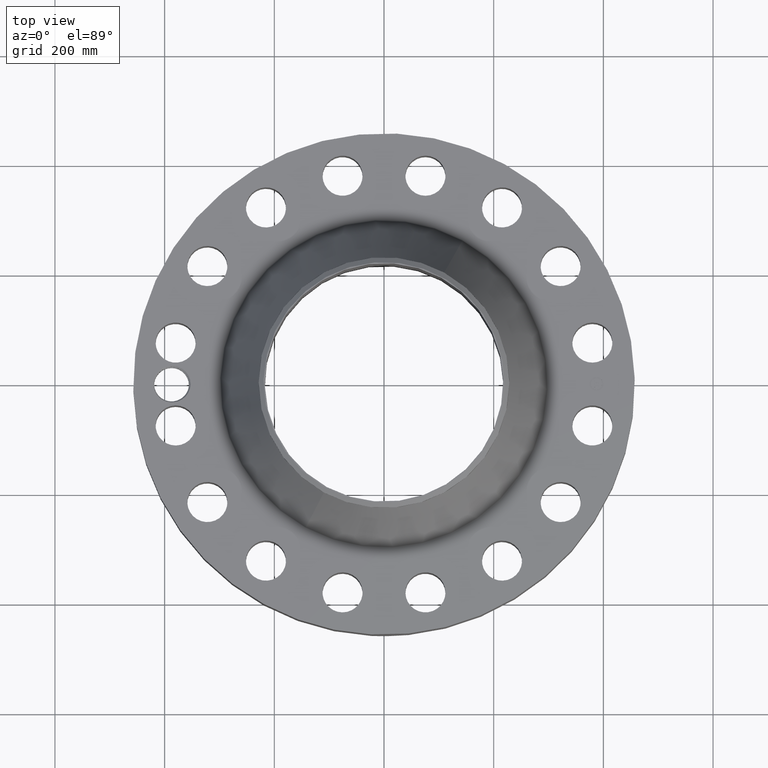
[diagram: clean part render]
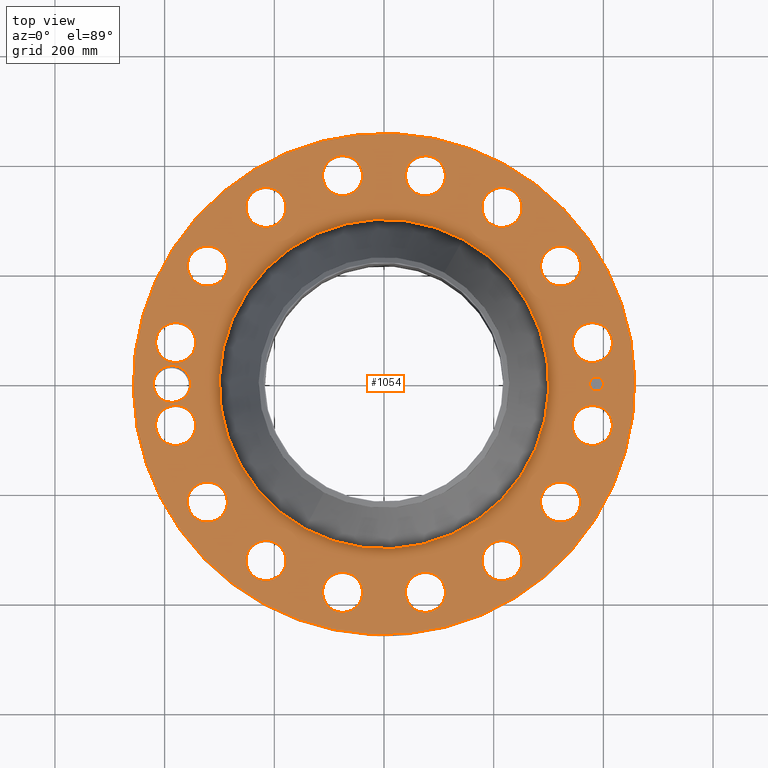
[diagram: same view with one face highlighted and labeled with its STEP entity id]
A machine part, top view. The second image highlights one B-rep face of the part: STEP entity #1054.
In plain terms, the highlighted planar face has unit normal (0, 0, -1).
Its self-contained STEP definition (entity closure, byte-faithful):
#58=AXIS2_PLACEMENT_3D('Circle Axis2P3D',#56,#57,$) ;
#560=AXIS2_PLACEMENT_3D('Circle Axis2P3D',#558,#559,$) ;
#660=AXIS2_PLACEMENT_3D('Plane Axis2P3D',#657,#658,#659) ;
#714=AXIS2_PLACEMENT_3D('Circle Axis2P3D',#712,#713,$) ;
#721=AXIS2_PLACEMENT_3D('Circle Axis2P3D',#719,#720,$) ;
#732=AXIS2_PLACEMENT_3D('Circle Axis2P3D',#730,#731,$) ;
#741=AXIS2_PLACEMENT_3D('Circle Axis2P3D',#739,#740,$) ;
#750=AXIS2_PLACEMENT_3D('Circle Axis2P3D',#748,#749,$) ;
#759=AXIS2_PLACEMENT_3D('Circle Axis2P3D',#757,#758,$) ;
#768=AXIS2_PLACEMENT_3D('Circle Axis2P3D',#766,#767,$) ;
#777=AXIS2_PLACEMENT_3D('Circle Axis2P3D',#775,#776,$) ;
#786=AXIS2_PLACEMENT_3D('Circle Axis2P3D',#784,#785,$) ;
#795=AXIS2_PLACEMENT_3D('Circle Axis2P3D',#793,#794,$) ;
#804=AXIS2_PLACEMENT_3D('Circle Axis2P3D',#802,#803,$) ;
#813=AXIS2_PLACEMENT_3D('Circle Axis2P3D',#811,#812,$) ;
#822=AXIS2_PLACEMENT_3D('Circle Axis2P3D',#820,#821,$) ;
#831=AXIS2_PLACEMENT_3D('Circle Axis2P3D',#829,#830,$) ;
#840=AXIS2_PLACEMENT_3D('Circle Axis2P3D',#838,#839,$) ;
#849=AXIS2_PLACEMENT_3D('Circle Axis2P3D',#847,#848,$) ;
#858=AXIS2_PLACEMENT_3D('Circle Axis2P3D',#856,#857,$) ;
#867=AXIS2_PLACEMENT_3D('Circle Axis2P3D',#865,#866,$) ;
#876=AXIS2_PLACEMENT_3D('Circle Axis2P3D',#874,#875,$) ;
#885=AXIS2_PLACEMENT_3D('Circle Axis2P3D',#883,#884,$) ;
#894=AXIS2_PLACEMENT_3D('Circle Axis2P3D',#892,#893,$) ;
#903=AXIS2_PLACEMENT_3D('Circle Axis2P3D',#901,#902,$) ;
#912=AXIS2_PLACEMENT_3D('Circle Axis2P3D',#910,#911,$) ;
#921=AXIS2_PLACEMENT_3D('Circle Axis2P3D',#919,#920,$) ;
#930=AXIS2_PLACEMENT_3D('Circle Axis2P3D',#928,#929,$) ;
#939=AXIS2_PLACEMENT_3D('Circle Axis2P3D',#937,#938,$) ;
#948=AXIS2_PLACEMENT_3D('Circle Axis2P3D',#946,#947,$) ;
#957=AXIS2_PLACEMENT_3D('Circle Axis2P3D',#955,#956,$) ;
#966=AXIS2_PLACEMENT_3D('Circle Axis2P3D',#964,#965,$) ;
#975=AXIS2_PLACEMENT_3D('Circle Axis2P3D',#973,#974,$) ;
#984=AXIS2_PLACEMENT_3D('Circle Axis2P3D',#982,#983,$) ;
#993=AXIS2_PLACEMENT_3D('Circle Axis2P3D',#991,#992,$) ;
#1002=AXIS2_PLACEMENT_3D('Circle Axis2P3D',#1000,#1001,$) ;
#1011=AXIS2_PLACEMENT_3D('Circle Axis2P3D',#1009,#1010,$) ;
#1020=AXIS2_PLACEMENT_3D('Circle Axis2P3D',#1018,#1019,$) ;
#1029=AXIS2_PLACEMENT_3D('Circle Axis2P3D',#1027,#1028,$) ;
#1038=AXIS2_PLACEMENT_3D('Circle Axis2P3D',#1036,#1037,$) ;
#1047=AXIS2_PLACEMENT_3D('Circle Axis2P3D',#1045,#1046,$) ;
#53=CARTESIAN_POINT('Vertex',(-8.62965969491,-15.7964861141,6.63000000003)) ;
#56=CARTESIAN_POINT('Axis2P3D Location',(0.,0.,6.63000000003)) ;
#60=CARTESIAN_POINT('Vertex',(8.62965969491,15.7964861141,6.63000000003)) ;
#558=CARTESIAN_POINT('Axis2P3D Location',(0.,0.,6.63000000003)) ;
#657=CARTESIAN_POINT('Axis2P3D Location',(0.,18.0000000001,6.63000000003)) ;
#667=CARTESIAN_POINT('Control Point',(-13.8750000001,2.23792987641E-015,6.63000000003)) ;
#668=CARTESIAN_POINT('Control Point',(-13.8781043885,0.106387661192,6.63000000003)) ;
#669=CARTESIAN_POINT('Control Point',(-13.8915027174,0.212331925073,6.63000000003)) ;
#670=CARTESIAN_POINT('Control Point',(-13.9151378905,0.316486341443,6.63000000003)) ;
#671=CARTESIAN_POINT('Control Point',(-13.9822405,0.518595752442,6.63000000003)) ;
#672=CARTESIAN_POINT('Control Point',(-14.0867484191,0.703411018152,6.63000000003)) ;
#673=CARTESIAN_POINT('Control Point',(-14.1478046237,0.790300598108,6.63000000003)) ;
#674=CARTESIAN_POINT('Control Point',(-14.2858852653,0.950788050769,6.63000000003)) ;
#675=CARTESIAN_POINT('Control Point',(-14.452014087,1.08108905036,6.63000000003)) ;
#676=CARTESIAN_POINT('Control Point',(-14.5411059949,1.13777676595,6.63000000003)) ;
#677=CARTESIAN_POINT('Control Point',(-14.702146672,1.21918718692,6.63000000003)) ;
#678=CARTESIAN_POINT('Control Point',(-14.8737655486,1.27221198282,6.63000000003)) ;
#679=CARTESIAN_POINT('Control Point',(-14.9466300401,1.28920176116,6.63000000003)) ;
#680=CARTESIAN_POINT('Control Point',(-15.0641539192,1.30797279884,6.63000000003)) ;
#681=CARTESIAN_POINT('Control Point',(-15.1826331325,1.31342384332,6.63000000003)) ;
#682=CARTESIAN_POINT('Control Point',(-15.2267988926,1.31359865738,6.63000000003)) ;
#683=CARTESIAN_POINT('Control Point',(-15.2708866534,1.31191939044,6.63000000003)) ;
#684=CARTESIAN_POINT('Control Point',(-15.3147924669,1.30839670447,6.63000000003)) ;
#685=CARTESIAN_POINT('Vertex',(-13.8750000001,2.23792987641E-015,6.63000000003)) ;
#687=CARTESIAN_POINT('Vertex',(-15.3147924669,1.30839670447,6.63000000003)) ;
#691=CARTESIAN_POINT('Control Point',(-13.8750000001,0.,6.63000000003)) ;
#692=CARTESIAN_POINT('Control Point',(-13.8781047716,-0.106400789181,6.63000000003)) ;
#693=CARTESIAN_POINT('Control Point',(-13.8915060336,-0.212358071062,6.63000000003)) ;
#694=CARTESIAN_POINT('Control Point',(-13.9151411749,-0.316512078974,6.63000000003)) ;
#695=CARTESIAN_POINT('Control Point',(-13.9822474099,-0.518634752558,6.63000000003)) ;
#696=CARTESIAN_POINT('Control Point',(-14.0867337372,-0.703405345918,6.63000000003)) ;
#697=CARTESIAN_POINT('Control Point',(-14.1477821489,-0.790276073647,6.63000000003)) ;
#698=CARTESIAN_POINT('Control Point',(-14.285862098,-0.950760712893,6.63000000003)) ;
#699=CARTESIAN_POINT('Control Point',(-14.4519470996,-1.08104005194,6.63000000003)) ;
#700=CARTESIAN_POINT('Control Point',(-14.5410346037,-1.13773457752,6.63000000003)) ;
#701=CARTESIAN_POINT('Control Point',(-14.7288539301,-1.23271081648,6.63000000003)) ;
#702=CARTESIAN_POINT('Control Point',(-14.931087206,-1.28907178813,6.63000000003)) ;
#703=CARTESIAN_POINT('Control Point',(-15.0345068022,-1.30711659366,6.63000000003)) ;
#704=CARTESIAN_POINT('Control Point',(-15.1533377583,-1.3158659545,6.63000000003)) ;
#705=CARTESIAN_POINT('Control Point',(-15.2716652087,-1.31125950817,6.63000000003)) ;
#706=CARTESIAN_POINT('Control Point',(-15.2860211675,-1.31050343843,6.63000000003)) ;
#707=CARTESIAN_POINT('Control Point',(-15.3003624084,-1.30955082917,6.63000000003)) ;
#708=CARTESIAN_POINT('Control Point',(-15.3146852902,-1.30840200751,6.63000000003)) ;
#709=CARTESIAN_POINT('Vertex',(-15.3146852902,-1.30840200751,6.63000000003)) ;
#712=CARTESIAN_POINT('Axis2P3D Location',(-15.2500000001,6.71378962923E-015,6.63000000003)) ;
#716=CARTESIAN_POINT('Vertex',(-16.3996331561,0.628047455574,6.63000000003)) ;
#719=CARTESIAN_POINT('Axis2P3D Location',(-15.2500000001,6.71378962923E-015,6.63000000003)) ;
#730=CARTESIAN_POINT('Axis2P3D Location',(14.9569755262,-2.97512741076,6.63000000003)) ;
#734=CARTESIAN_POINT('Vertex',(13.6932566371,-2.28475463517,6.63000000003)) ;
#736=CARTESIAN_POINT('Vertex',(16.2206944153,-3.66550018635,6.63000000003)) ;
#739=CARTESIAN_POINT('Axis2P3D Location',(14.9569755262,-2.97512741076,6.63000000003)) ;
#748=CARTESIAN_POINT('Axis2P3D Location',(0.,0.,6.63000000003)) ;
#752=CARTESIAN_POINT('Vertex',(-5.67013713604,-10.379116408,6.63000000003)) ;
#754=CARTESIAN_POINT('Vertex',(5.67013713604,10.379116408,6.63000000003)) ;
#757=CARTESIAN_POINT('Axis2P3D Location',(0.,0.,6.63000000003)) ;
#766=CARTESIAN_POINT('Axis2P3D Location',(12.6799115877,-8.47244605358,6.63000000003)) ;
#770=CARTESIAN_POINT('Vertex',(13.5832413808,-9.59387161279,6.63000000003)) ;
#772=CARTESIAN_POINT('Vertex',(11.7765817945,-7.35102049437,6.63000000003)) ;
#775=CARTESIAN_POINT('Axis2P3D Location',(12.6799115877,-8.47244605358,6.63000000003)) ;
#784=CARTESIAN_POINT('Axis2P3D Location',(8.47244605358,-12.6799115877,6.63000000003)) ;
#788=CARTESIAN_POINT('Vertex',(8.87786297843,-14.0616630548,6.63000000003)) ;
#790=CARTESIAN_POINT('Vertex',(8.06702912874,-11.2981601205,6.63000000003)) ;
#793=CARTESIAN_POINT('Axis2P3D Location',(8.47244605358,-12.6799115877,6.63000000003)) ;
#802=CARTESIAN_POINT('Axis2P3D Location',(2.97512741076,-14.9569755262,6.63000000003)) ;
#806=CARTESIAN_POINT('Vertex',(2.82091041562,-16.3886937661,6.63000000003)) ;
#808=CARTESIAN_POINT('Vertex',(3.1293444059,-13.5252572863,6.63000000003)) ;
#811=CARTESIAN_POINT('Axis2P3D Location',(2.97512741076,-14.9569755262,6.63000000003)) ;
#820=CARTESIAN_POINT('Axis2P3D Location',(-2.97512741076,-14.9569755262,6.63000000003)) ;
#824=CARTESIAN_POINT('Vertex',(-3.66550018635,-16.2206944153,6.63000000003)) ;
#826=CARTESIAN_POINT('Vertex',(-2.28475463517,-13.6932566371,6.63000000003)) ;
#829=CARTESIAN_POINT('Axis2P3D Location',(-2.97512741076,-14.9569755262,6.63000000003)) ;
#838=CARTESIAN_POINT('Axis2P3D Location',(-8.47244605358,-12.6799115877,6.63000000003)) ;
#842=CARTESIAN_POINT('Vertex',(-9.59387161279,-13.5832413808,6.63000000003)) ;
#844=CARTESIAN_POINT('Vertex',(-7.35102049437,-11.7765817945,6.63000000003)) ;
#847=CARTESIAN_POINT('Axis2P3D Location',(-8.47244605358,-12.6799115877,6.63000000003)) ;
#856=CARTESIAN_POINT('Axis2P3D Location',(-12.6799115877,-8.47244605358,6.63000000003)) ;
#860=CARTESIAN_POINT('Vertex',(-14.0616630548,-8.87786297843,6.63000000003)) ;
#862=CARTESIAN_POINT('Vertex',(-11.2981601205,-8.06702912874,6.63000000003)) ;
#865=CARTESIAN_POINT('Axis2P3D Location',(-12.6799115877,-8.47244605358,6.63000000003)) ;
#874=CARTESIAN_POINT('Axis2P3D Location',(-14.9569755262,-2.97512741076,6.63000000003)) ;
#878=CARTESIAN_POINT('Vertex',(-16.3886937661,-2.82091041562,6.63000000003)) ;
#880=CARTESIAN_POINT('Vertex',(-13.5252572863,-3.1293444059,6.63000000003)) ;
#883=CARTESIAN_POINT('Axis2P3D Location',(-14.9569755262,-2.97512741076,6.63000000003)) ;
#892=CARTESIAN_POINT('Axis2P3D Location',(-14.9569755262,2.97512741076,6.63000000003)) ;
#896=CARTESIAN_POINT('Vertex',(-16.2206944153,3.66550018635,6.63000000003)) ;
#898=CARTESIAN_POINT('Vertex',(-13.6932566371,2.28475463517,6.63000000003)) ;
#901=CARTESIAN_POINT('Axis2P3D Location',(-14.9569755262,2.97512741076,6.63000000003)) ;
#910=CARTESIAN_POINT('Axis2P3D Location',(-12.6799115877,8.47244605358,6.63000000003)) ;
#914=CARTESIAN_POINT('Vertex',(-13.5832413808,9.59387161279,6.63000000003)) ;
#916=CARTESIAN_POINT('Vertex',(-11.7765817945,7.35102049437,6.63000000003)) ;
#919=CARTESIAN_POINT('Axis2P3D Location',(-12.6799115877,8.47244605358,6.63000000003)) ;
#928=CARTESIAN_POINT('Axis2P3D Location',(-8.47244605358,12.6799115877,6.63000000003)) ;
#932=CARTESIAN_POINT('Vertex',(-8.87786297843,14.0616630548,6.63000000003)) ;
#934=CARTESIAN_POINT('Vertex',(-8.06702912874,11.2981601205,6.63000000003)) ;
#937=CARTESIAN_POINT('Axis2P3D Location',(-8.47244605358,12.6799115877,6.63000000003)) ;
#946=CARTESIAN_POINT('Axis2P3D Location',(-2.97512741076,14.9569755262,6.63000000003)) ;
#950=CARTESIAN_POINT('Vertex',(-2.82091041562,16.3886937661,6.63000000003)) ;
#952=CARTESIAN_POINT('Vertex',(-3.1293444059,13.5252572863,6.63000000003)) ;
#955=CARTESIAN_POINT('Axis2P3D Location',(-2.97512741076,14.9569755262,6.63000000003)) ;
#964=CARTESIAN_POINT('Axis2P3D Location',(2.97512741076,14.9569755262,6.63000000003)) ;
#968=CARTESIAN_POINT('Vertex',(3.66550018635,16.2206944153,6.63000000003)) ;
#970=CARTESIAN_POINT('Vertex',(2.28475463517,13.6932566371,6.63000000003)) ;
#973=CARTESIAN_POINT('Axis2P3D Location',(2.97512741076,14.9569755262,6.63000000003)) ;
#982=CARTESIAN_POINT('Axis2P3D Location',(8.47244605358,12.6799115877,6.63000000003)) ;
#986=CARTESIAN_POINT('Vertex',(9.59387161279,13.5832413808,6.63000000003)) ;
#988=CARTESIAN_POINT('Vertex',(7.35102049437,11.7765817945,6.63000000003)) ;
#991=CARTESIAN_POINT('Axis2P3D Location',(8.47244605358,12.6799115877,6.63000000003)) ;
#1000=CARTESIAN_POINT('Axis2P3D Location',(12.6799115877,8.47244605358,6.63000000003)) ;
#1004=CARTESIAN_POINT('Vertex',(14.0616630548,8.87786297843,6.63000000003)) ;
#1006=CARTESIAN_POINT('Vertex',(11.2981601205,8.06702912874,6.63000000003)) ;
#1009=CARTESIAN_POINT('Axis2P3D Location',(12.6799115877,8.47244605358,6.63000000003)) ;
#1018=CARTESIAN_POINT('Axis2P3D Location',(14.9569755262,2.97512741076,6.63000000003)) ;
#1022=CARTESIAN_POINT('Vertex',(16.3886937661,2.82091041562,6.63000000003)) ;
#1024=CARTESIAN_POINT('Vertex',(13.5252572863,3.1293444059,6.63000000003)) ;
#1027=CARTESIAN_POINT('Axis2P3D Location',(14.9569755262,2.97512741076,6.63000000003)) ;
#1036=CARTESIAN_POINT('Axis2P3D Location',(15.2500000001,0.,6.63000000003)) ;
#1040=CARTESIAN_POINT('Vertex',(15.2500000001,0.499999995002,6.63000000003)) ;
#1042=CARTESIAN_POINT('Vertex',(15.2500000001,-0.499999995002,6.63000000003)) ;
#1045=CARTESIAN_POINT('Axis2P3D Location',(15.2500000001,0.,6.63000000003)) ;
#57=DIRECTION('Axis2P3D Direction',(0.,0.,-0.0393700787402)) ;
#559=DIRECTION('Axis2P3D Direction',(0.,0.,-0.0393700787402)) ;
#658=DIRECTION('Axis2P3D Direction',(0.,0.,-0.0393700787402)) ;
#659=DIRECTION('Axis2P3D XDirection',(0.0393700787402,0.,0.)) ;
#713=DIRECTION('Axis2P3D Direction',(0.,0.,-0.0393700787402)) ;
#720=DIRECTION('Axis2P3D Direction',(0.,0.,-0.0393700787402)) ;
#731=DIRECTION('Axis2P3D Direction',(0.,0.,-0.0393700787402)) ;
#740=DIRECTION('Axis2P3D Direction',(0.,0.,-0.0393700787402)) ;
#749=DIRECTION('Axis2P3D Direction',(0.,0.,-0.0393700787402)) ;
#758=DIRECTION('Axis2P3D Direction',(0.,0.,-0.0393700787402)) ;
#767=DIRECTION('Axis2P3D Direction',(0.,0.,-0.0393700787402)) ;
#776=DIRECTION('Axis2P3D Direction',(0.,0.,-0.0393700787402)) ;
#785=DIRECTION('Axis2P3D Direction',(0.,0.,-0.0393700787402)) ;
#794=DIRECTION('Axis2P3D Direction',(0.,0.,-0.0393700787402)) ;
#803=DIRECTION('Axis2P3D Direction',(0.,0.,-0.0393700787402)) ;
#812=DIRECTION('Axis2P3D Direction',(0.,0.,-0.0393700787402)) ;
#821=DIRECTION('Axis2P3D Direction',(0.,0.,-0.0393700787402)) ;
#830=DIRECTION('Axis2P3D Direction',(0.,0.,-0.0393700787402)) ;
#839=DIRECTION('Axis2P3D Direction',(0.,0.,-0.0393700787402)) ;
#848=DIRECTION('Axis2P3D Direction',(0.,0.,-0.0393700787402)) ;
#857=DIRECTION('Axis2P3D Direction',(0.,0.,-0.0393700787402)) ;
#866=DIRECTION('Axis2P3D Direction',(0.,0.,-0.0393700787402)) ;
#875=DIRECTION('Axis2P3D Direction',(0.,0.,-0.0393700787402)) ;
#884=DIRECTION('Axis2P3D Direction',(0.,0.,-0.0393700787402)) ;
#893=DIRECTION('Axis2P3D Direction',(0.,0.,-0.0393700787402)) ;
#902=DIRECTION('Axis2P3D Direction',(0.,0.,-0.0393700787402)) ;
#911=DIRECTION('Axis2P3D Direction',(0.,0.,-0.0393700787402)) ;
#920=DIRECTION('Axis2P3D Direction',(0.,0.,-0.0393700787402)) ;
#929=DIRECTION('Axis2P3D Direction',(0.,0.,-0.0393700787402)) ;
#938=DIRECTION('Axis2P3D Direction',(0.,0.,-0.0393700787402)) ;
#947=DIRECTION('Axis2P3D Direction',(0.,0.,-0.0393700787402)) ;
#956=DIRECTION('Axis2P3D Direction',(0.,0.,-0.0393700787402)) ;
#965=DIRECTION('Axis2P3D Direction',(0.,0.,-0.0393700787402)) ;
#974=DIRECTION('Axis2P3D Direction',(0.,0.,-0.0393700787402)) ;
#983=DIRECTION('Axis2P3D Direction',(0.,0.,-0.0393700787402)) ;
#992=DIRECTION('Axis2P3D Direction',(0.,0.,-0.0393700787402)) ;
#1001=DIRECTION('Axis2P3D Direction',(0.,0.,-0.0393700787402)) ;
#1010=DIRECTION('Axis2P3D Direction',(0.,0.,-0.0393700787402)) ;
#1019=DIRECTION('Axis2P3D Direction',(0.,0.,-0.0393700787402)) ;
#1028=DIRECTION('Axis2P3D Direction',(0.,0.,-0.0393700787402)) ;
#1037=DIRECTION('Axis2P3D Direction',(0.,0.,-0.0393700787402)) ;
#1046=DIRECTION('Axis2P3D Direction',(0.,0.,-0.0393700787402)) ;
#663=ORIENTED_EDGE('',*,*,#562,.F.) ;
#664=ORIENTED_EDGE('',*,*,#62,.F.) ;
#725=ORIENTED_EDGE('',*,*,#689,.F.) ;
#726=ORIENTED_EDGE('',*,*,#711,.T.) ;
#727=ORIENTED_EDGE('',*,*,#718,.T.) ;
#728=ORIENTED_EDGE('',*,*,#723,.T.) ;
#745=ORIENTED_EDGE('',*,*,#738,.T.) ;
#746=ORIENTED_EDGE('',*,*,#743,.T.) ;
#763=ORIENTED_EDGE('',*,*,#756,.T.) ;
#764=ORIENTED_EDGE('',*,*,#761,.T.) ;
#781=ORIENTED_EDGE('',*,*,#774,.T.) ;
#782=ORIENTED_EDGE('',*,*,#779,.T.) ;
#799=ORIENTED_EDGE('',*,*,#792,.T.) ;
#800=ORIENTED_EDGE('',*,*,#797,.T.) ;
#817=ORIENTED_EDGE('',*,*,#810,.T.) ;
#818=ORIENTED_EDGE('',*,*,#815,.T.) ;
#835=ORIENTED_EDGE('',*,*,#828,.T.) ;
#836=ORIENTED_EDGE('',*,*,#833,.T.) ;
#853=ORIENTED_EDGE('',*,*,#846,.T.) ;
#854=ORIENTED_EDGE('',*,*,#851,.T.) ;
#871=ORIENTED_EDGE('',*,*,#864,.T.) ;
#872=ORIENTED_EDGE('',*,*,#869,.T.) ;
#889=ORIENTED_EDGE('',*,*,#882,.T.) ;
#890=ORIENTED_EDGE('',*,*,#887,.T.) ;
#907=ORIENTED_EDGE('',*,*,#900,.T.) ;
#908=ORIENTED_EDGE('',*,*,#905,.T.) ;
#925=ORIENTED_EDGE('',*,*,#918,.T.) ;
#926=ORIENTED_EDGE('',*,*,#923,.T.) ;
#943=ORIENTED_EDGE('',*,*,#936,.T.) ;
#944=ORIENTED_EDGE('',*,*,#941,.T.) ;
#961=ORIENTED_EDGE('',*,*,#954,.T.) ;
#962=ORIENTED_EDGE('',*,*,#959,.T.) ;
#979=ORIENTED_EDGE('',*,*,#972,.T.) ;
#980=ORIENTED_EDGE('',*,*,#977,.T.) ;
#997=ORIENTED_EDGE('',*,*,#990,.T.) ;
#998=ORIENTED_EDGE('',*,*,#995,.T.) ;
#1015=ORIENTED_EDGE('',*,*,#1008,.T.) ;
#1016=ORIENTED_EDGE('',*,*,#1013,.T.) ;
#1033=ORIENTED_EDGE('',*,*,#1026,.T.) ;
#1034=ORIENTED_EDGE('',*,*,#1031,.T.) ;
#1051=ORIENTED_EDGE('',*,*,#1044,.T.) ;
#1052=ORIENTED_EDGE('',*,*,#1049,.T.) ;
#729=FACE_BOUND('',#724,.T.) ;
#747=FACE_BOUND('',#744,.T.) ;
#765=FACE_BOUND('',#762,.T.) ;
#783=FACE_BOUND('',#780,.T.) ;
#801=FACE_BOUND('',#798,.T.) ;
#819=FACE_BOUND('',#816,.T.) ;
#837=FACE_BOUND('',#834,.T.) ;
#855=FACE_BOUND('',#852,.T.) ;
#873=FACE_BOUND('',#870,.T.) ;
#891=FACE_BOUND('',#888,.T.) ;
#909=FACE_BOUND('',#906,.T.) ;
#927=FACE_BOUND('',#924,.T.) ;
#945=FACE_BOUND('',#942,.T.) ;
#963=FACE_BOUND('',#960,.T.) ;
#981=FACE_BOUND('',#978,.T.) ;
#999=FACE_BOUND('',#996,.T.) ;
#1017=FACE_BOUND('',#1014,.T.) ;
#1035=FACE_BOUND('',#1032,.T.) ;
#1053=FACE_BOUND('',#1050,.T.) ;
#1054=ADVANCED_FACE('PartBody',(#665,#729,#747,#765,#783,#801,#819,#837,#855,#873,#891,#909,#927,#945,#963,#981,#999,#1017,#1035,#1053),#661,.F.) ;
#666=B_SPLINE_CURVE_WITH_KNOTS('',5,(#667,#668,#669,#670,#671,#672,#673,#674,#675,#676,#677,#678,#679,#680,#681,#682,#683,#684),.UNSPECIFIED.,.F.,.U.,(6,3,3,3,3,6),(0.,18.6939135383,37.393554557,56.0896610868,69.4369072728,77.3615929485),.UNSPECIFIED.) ;
#690=B_SPLINE_CURVE_WITH_KNOTS('',5,(#691,#692,#693,#694,#695,#696,#697,#698,#699,#700,#701,#702,#703,#704,#705,#706,#707,#708),.UNSPECIFIED.,.F.,.U.,(6,3,3,3,3,6),(0.,18.6962203236,37.4059904277,56.123884319,74.8256379076,77.4101660563),.UNSPECIFIED.) ;
#59=CIRCLE('generated circle',#58,18.0000000001) ;
#561=CIRCLE('generated circle',#560,18.0000000001) ;
#715=CIRCLE('generated circle',#714,1.31000000001) ;
#722=CIRCLE('generated circle',#721,1.31000000001) ;
#733=CIRCLE('generated circle',#732,1.44000000001) ;
#742=CIRCLE('generated circle',#741,1.44000000001) ;
#751=CIRCLE('generated circle',#750,11.8269401179) ;
#760=CIRCLE('generated circle',#759,11.8269401179) ;
#769=CIRCLE('generated circle',#768,1.44000000001) ;
#778=CIRCLE('generated circle',#777,1.44000000001) ;
#787=CIRCLE('generated circle',#786,1.44000000001) ;
#796=CIRCLE('generated circle',#795,1.44000000001) ;
#805=CIRCLE('generated circle',#804,1.44000000001) ;
#814=CIRCLE('generated circle',#813,1.44000000001) ;
#823=CIRCLE('generated circle',#822,1.44000000001) ;
#832=CIRCLE('generated circle',#831,1.44000000001) ;
#841=CIRCLE('generated circle',#840,1.44000000001) ;
#850=CIRCLE('generated circle',#849,1.44000000001) ;
#859=CIRCLE('generated circle',#858,1.44000000001) ;
#868=CIRCLE('generated circle',#867,1.44000000001) ;
#877=CIRCLE('generated circle',#876,1.44000000001) ;
#886=CIRCLE('generated circle',#885,1.44000000001) ;
#895=CIRCLE('generated circle',#894,1.44000000001) ;
#904=CIRCLE('generated circle',#903,1.44000000001) ;
#913=CIRCLE('generated circle',#912,1.44000000001) ;
#922=CIRCLE('generated circle',#921,1.44000000001) ;
#931=CIRCLE('generated circle',#930,1.44000000001) ;
#940=CIRCLE('generated circle',#939,1.44000000001) ;
#949=CIRCLE('generated circle',#948,1.44000000001) ;
#958=CIRCLE('generated circle',#957,1.44000000001) ;
#967=CIRCLE('generated circle',#966,1.44000000001) ;
#976=CIRCLE('generated circle',#975,1.44000000001) ;
#985=CIRCLE('generated circle',#984,1.44000000001) ;
#994=CIRCLE('generated circle',#993,1.44000000001) ;
#1003=CIRCLE('generated circle',#1002,1.44000000001) ;
#1012=CIRCLE('generated circle',#1011,1.44000000001) ;
#1021=CIRCLE('generated circle',#1020,1.44000000001) ;
#1030=CIRCLE('generated circle',#1029,1.44000000001) ;
#1039=CIRCLE('generated circle',#1038,0.499999995002) ;
#1048=CIRCLE('generated circle',#1047,0.499999995002) ;
#62=EDGE_CURVE('',#54,#61,#59,.T.) ;
#562=EDGE_CURVE('',#61,#54,#561,.T.) ;
#689=EDGE_CURVE('',#686,#688,#666,.T.) ;
#711=EDGE_CURVE('',#686,#710,#690,.T.) ;
#718=EDGE_CURVE('',#710,#717,#715,.T.) ;
#723=EDGE_CURVE('',#717,#688,#722,.T.) ;
#738=EDGE_CURVE('',#735,#737,#733,.T.) ;
#743=EDGE_CURVE('',#737,#735,#742,.T.) ;
#756=EDGE_CURVE('',#753,#755,#751,.T.) ;
#761=EDGE_CURVE('',#755,#753,#760,.T.) ;
#774=EDGE_CURVE('',#771,#773,#769,.T.) ;
#779=EDGE_CURVE('',#773,#771,#778,.T.) ;
#792=EDGE_CURVE('',#789,#791,#787,.T.) ;
#797=EDGE_CURVE('',#791,#789,#796,.T.) ;
#810=EDGE_CURVE('',#807,#809,#805,.T.) ;
#815=EDGE_CURVE('',#809,#807,#814,.T.) ;
#828=EDGE_CURVE('',#825,#827,#823,.T.) ;
#833=EDGE_CURVE('',#827,#825,#832,.T.) ;
#846=EDGE_CURVE('',#843,#845,#841,.T.) ;
#851=EDGE_CURVE('',#845,#843,#850,.T.) ;
#864=EDGE_CURVE('',#861,#863,#859,.T.) ;
#869=EDGE_CURVE('',#863,#861,#868,.T.) ;
#882=EDGE_CURVE('',#879,#881,#877,.T.) ;
#887=EDGE_CURVE('',#881,#879,#886,.T.) ;
#900=EDGE_CURVE('',#897,#899,#895,.T.) ;
#905=EDGE_CURVE('',#899,#897,#904,.T.) ;
#918=EDGE_CURVE('',#915,#917,#913,.T.) ;
#923=EDGE_CURVE('',#917,#915,#922,.T.) ;
#936=EDGE_CURVE('',#933,#935,#931,.T.) ;
#941=EDGE_CURVE('',#935,#933,#940,.T.) ;
#954=EDGE_CURVE('',#951,#953,#949,.T.) ;
#959=EDGE_CURVE('',#953,#951,#958,.T.) ;
#972=EDGE_CURVE('',#969,#971,#967,.T.) ;
#977=EDGE_CURVE('',#971,#969,#976,.T.) ;
#990=EDGE_CURVE('',#987,#989,#985,.T.) ;
#995=EDGE_CURVE('',#989,#987,#994,.T.) ;
#1008=EDGE_CURVE('',#1005,#1007,#1003,.T.) ;
#1013=EDGE_CURVE('',#1007,#1005,#1012,.T.) ;
#1026=EDGE_CURVE('',#1023,#1025,#1021,.T.) ;
#1031=EDGE_CURVE('',#1025,#1023,#1030,.T.) ;
#1044=EDGE_CURVE('',#1041,#1043,#1039,.T.) ;
#1049=EDGE_CURVE('',#1043,#1041,#1048,.T.) ;
#662=EDGE_LOOP('',(#663,#664)) ;
#724=EDGE_LOOP('',(#725,#726,#727,#728)) ;
#744=EDGE_LOOP('',(#745,#746)) ;
#762=EDGE_LOOP('',(#763,#764)) ;
#780=EDGE_LOOP('',(#781,#782)) ;
#798=EDGE_LOOP('',(#799,#800)) ;
#816=EDGE_LOOP('',(#817,#818)) ;
#834=EDGE_LOOP('',(#835,#836)) ;
#852=EDGE_LOOP('',(#853,#854)) ;
#870=EDGE_LOOP('',(#871,#872)) ;
#888=EDGE_LOOP('',(#889,#890)) ;
#906=EDGE_LOOP('',(#907,#908)) ;
#924=EDGE_LOOP('',(#925,#926)) ;
#942=EDGE_LOOP('',(#943,#944)) ;
#960=EDGE_LOOP('',(#961,#962)) ;
#978=EDGE_LOOP('',(#979,#980)) ;
#996=EDGE_LOOP('',(#997,#998)) ;
#1014=EDGE_LOOP('',(#1015,#1016)) ;
#1032=EDGE_LOOP('',(#1033,#1034)) ;
#1050=EDGE_LOOP('',(#1051,#1052)) ;
#665=FACE_OUTER_BOUND('',#662,.T.) ;
#661=PLANE('',#660) ;
#54=VERTEX_POINT('',#53) ;
#61=VERTEX_POINT('',#60) ;
#686=VERTEX_POINT('',#685) ;
#688=VERTEX_POINT('',#687) ;
#710=VERTEX_POINT('',#709) ;
#717=VERTEX_POINT('',#716) ;
#735=VERTEX_POINT('',#734) ;
#737=VERTEX_POINT('',#736) ;
#753=VERTEX_POINT('',#752) ;
#755=VERTEX_POINT('',#754) ;
#771=VERTEX_POINT('',#770) ;
#773=VERTEX_POINT('',#772) ;
#789=VERTEX_POINT('',#788) ;
#791=VERTEX_POINT('',#790) ;
#807=VERTEX_POINT('',#806) ;
#809=VERTEX_POINT('',#808) ;
#825=VERTEX_POINT('',#824) ;
#827=VERTEX_POINT('',#826) ;
#843=VERTEX_POINT('',#842) ;
#845=VERTEX_POINT('',#844) ;
#861=VERTEX_POINT('',#860) ;
#863=VERTEX_POINT('',#862) ;
#879=VERTEX_POINT('',#878) ;
#881=VERTEX_POINT('',#880) ;
#897=VERTEX_POINT('',#896) ;
#899=VERTEX_POINT('',#898) ;
#915=VERTEX_POINT('',#914) ;
#917=VERTEX_POINT('',#916) ;
#933=VERTEX_POINT('',#932) ;
#935=VERTEX_POINT('',#934) ;
#951=VERTEX_POINT('',#950) ;
#953=VERTEX_POINT('',#952) ;
#969=VERTEX_POINT('',#968) ;
#971=VERTEX_POINT('',#970) ;
#987=VERTEX_POINT('',#986) ;
#989=VERTEX_POINT('',#988) ;
#1005=VERTEX_POINT('',#1004) ;
#1007=VERTEX_POINT('',#1006) ;
#1023=VERTEX_POINT('',#1022) ;
#1025=VERTEX_POINT('',#1024) ;
#1041=VERTEX_POINT('',#1040) ;
#1043=VERTEX_POINT('',#1042) ;